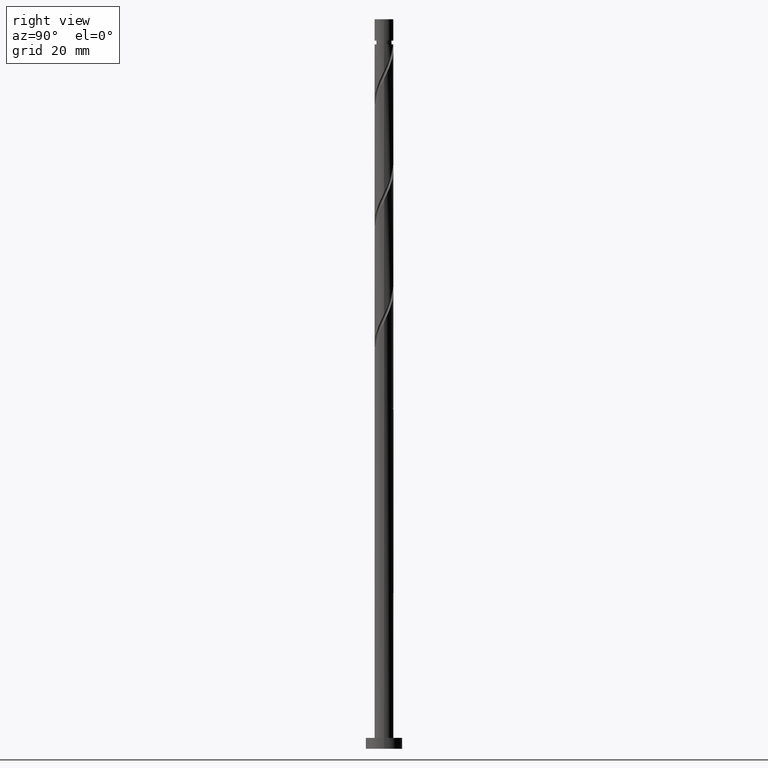
[diagram: clean part render]
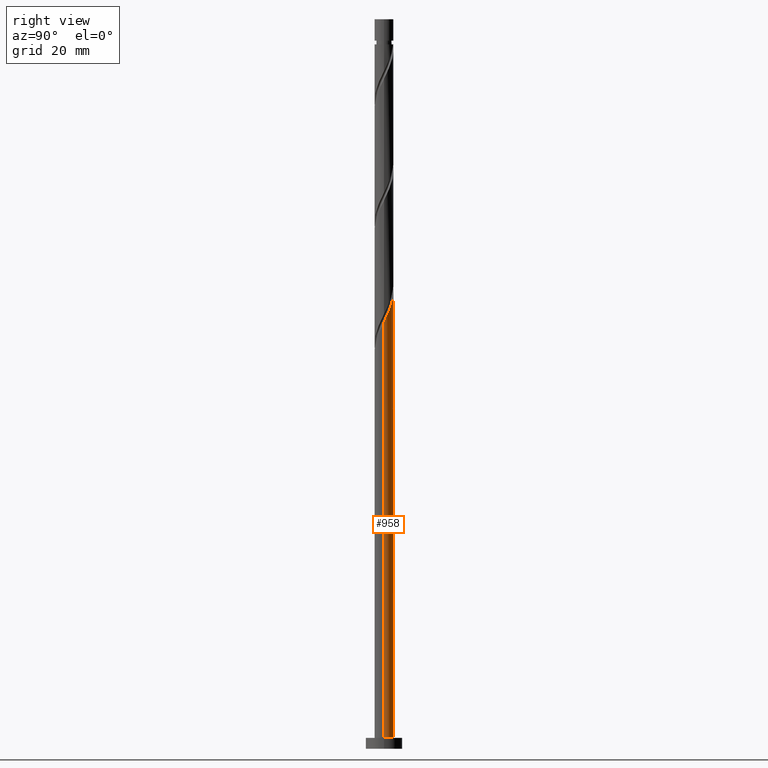
[diagram: same view with one face highlighted and labeled with its STEP entity id]
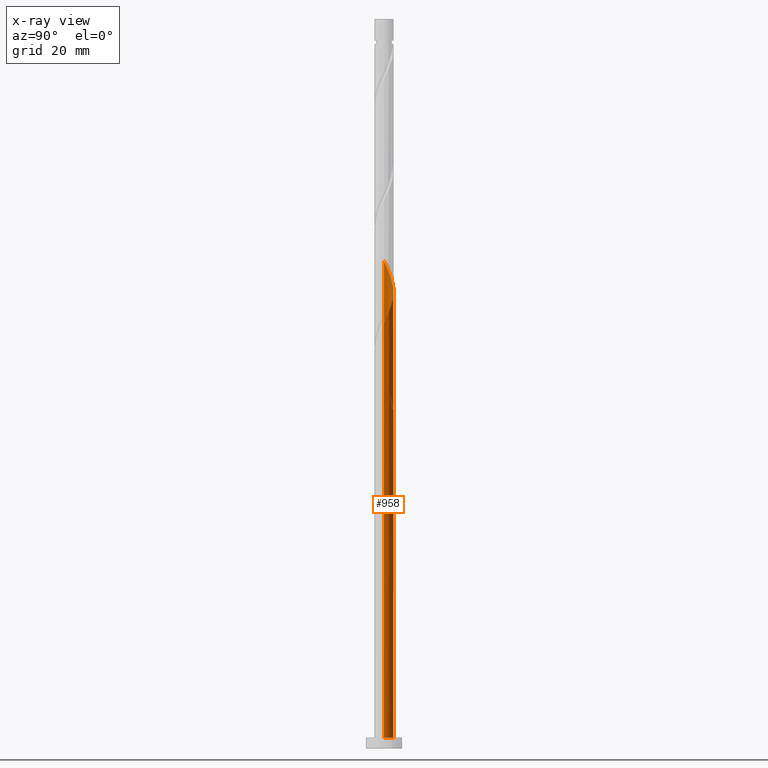
[diagram: x-ray of the same camera — body ghosted, the highlighted face saturated]
A machine part, right view. The second image highlights one B-rep face of the part: STEP entity #958.
The next image is the same camera in x-ray: the body ghosted, the highlighted face saturated — about 0% of this face is hidden behind the body in this view.
In plain terms, the highlighted cylindrical surface (edge-blend (fillet) strip) has radius 2.6 mm, axis along (-0, -0, -1).
Its self-contained STEP definition (entity closure, byte-faithful):
#3 = CARTESIAN_POINT ( 'NONE',  ( 1.947935995195031689, 1.722075886429967673, 120.8613134528319932 ) ) ;
#38 = CARTESIAN_POINT ( 'NONE',  ( -2.600000000000004086, -2.302882804317473155E-15, 133.6866356865107832 ) ) ;
#50 = CARTESIAN_POINT ( 'NONE',  ( -2.600000000000003642, 0.07992907430994611317, 133.5234719984826484 ) ) ;
#57 = CARTESIAN_POINT ( 'NONE',  ( -2.600000000000003642, -2.302882804317473550E-15, 100.3533023531774973 ) ) ;
#59 = CARTESIAN_POINT ( 'NONE',  ( -2.600000000000000089, 0.000000000000000000, 200.0000000000000000 ) ) ;
#67 = DIRECTION ( 'NONE',  ( 0.000000000000000000, -0.000000000000000000, -1.000000000000000000 ) ) ;
#74 = CYLINDRICAL_SURFACE ( 'NONE', #1132, 2.600000000000000089 ) ;
#83 = CARTESIAN_POINT ( 'NONE',  ( -2.600000000000004086, -2.302882804317473155E-15, 100.3533023531774973 ) ) ;
#87 =( BOUNDED_CURVE ( )  B_SPLINE_CURVE ( 2, ( #614, #1167, #1690, #489, #1035, #1293, #623, #1175, #1462, #932, #1075, #230, #83 ),
 .UNSPECIFIED., .F., .T. ) 
 B_SPLINE_CURVE_WITH_KNOTS ( ( 3, 2, 2, 2, 2, 2, 3 ),
 ( 0.000000000000000000, 0.01041666666666662966, 0.02083333333333337034, 0.03125000000000000000, 0.04166666666666662966, 0.05208333333333336340, 0.05453176698144631546 ),
 .UNSPECIFIED. ) 
 CURVE ( )  GEOMETRIC_REPRESENTATION_ITEM ( )  RATIONAL_B_SPLINE_CURVE ( ( 0.9090909090909320422, 0.9013135103398504100, 0.9090909090909320422, 0.9013135103398504100, 0.9090909090909320422, 0.9013135103398504100, 0.9090909090909320422, 0.9013135103398504100, 0.9090909090909320422, 0.9013135103398504100, 0.9090909090909320422, 0.9072628343904256543, 0.9062941362546521606 ) ) 
 REPRESENTATION_ITEM ( '' )  );
#100 = VECTOR ( 'NONE', #871, 1000.000000000000000 ) ;
#103 = FACE_OUTER_BOUND ( 'NONE', #1282, .T. ) ;
#110 = DIRECTION ( 'NONE',  ( -0.000000000000000000, -0.000000000000000000, -1.000000000000000000 ) ) ;
#150 = ORIENTED_EDGE ( 'NONE', *, *, #581, .T. ) ;
#178 = CARTESIAN_POINT ( 'NONE',  ( 2.600000000000000089, 3.184081677783118191E-16, 200.0000000000000000 ) ) ;
#198 = EDGE_CURVE ( 'NONE', #1468, #746, #1206, .T. ) ;
#230 = CARTESIAN_POINT ( 'NONE',  ( -2.600000000000003642, 0.07992907430995085938, 100.1901386651493482 ) ) ;
#318 = EDGE_CURVE ( 'NONE', #1741, #800, #856, .T. ) ;
#328 = DIRECTION ( 'NONE',  ( -0.000000000000000000, -0.000000000000000000, -1.000000000000000000 ) ) ;
#347 = LINE ( 'NONE', #1204, #365 ) ;
#365 = VECTOR ( 'NONE', #682, 1000.000000000000000 ) ;
#383 = CARTESIAN_POINT ( 'NONE',  ( -2.327267722236857406, 1.159234639335140704, 100.0279801194986646 ) ) ;
#386 = CARTESIAN_POINT ( 'NONE',  ( 0.000000000000000000, 0.000000000000000000, 200.0000000000000000 ) ) ;
#392 = CARTESIAN_POINT ( 'NONE',  ( -1.435855649197094852, 2.167560507729551667, 97.25020234172085054 ) ) ;
#396 = EDGE_CURVE ( 'NONE', #698, #432, #1459, .T. ) ;
#401 = CARTESIAN_POINT ( 'NONE',  ( -2.600000000000000533, 0.2613098319673978209, 101.9470092944083035 ) ) ;
#431 = CARTESIAN_POINT ( 'NONE',  ( -1.722075886429969005, 1.947935995195030801, 129.1946467861653502 ) ) ;
#432 = VERTEX_POINT ( 'NONE', #461 ) ;
#433 = CARTESIAN_POINT ( 'NONE',  ( -0.5173934672954432212, 2.548000000000003595, 93.08353567505420756 ) ) ;
#436 = CARTESIAN_POINT ( 'NONE',  ( -0.1819429034427561542, 2.616116142204851336, 125.7224245639431075 ) ) ;
#451 = DIRECTION ( 'NONE',  ( 1.000000000000000000, 0.000000000000000000, 0.000000000000000000 ) ) ;
#454 = CARTESIAN_POINT ( 'NONE',  ( -2.600000000000000533, 3.454324206476229849E-15, 102.4804356635976177 ) ) ;
#461 = CARTESIAN_POINT ( 'NONE',  ( -2.600000000000000089, 0.000000000000000000, 3.000000000000000000 ) ) ;
#485 = EDGE_CURVE ( 'NONE', #800, #1468, #1526, .T. ) ;
#489 = CARTESIAN_POINT ( 'NONE',  ( -1.465625247522153618, 2.174651586678563842, 95.16686900838755037 ) ) ;
#515 = CARTESIAN_POINT ( 'NONE',  ( -0.8259241135700324810, 2.465329462490471801, 95.86131345283199323 ) ) ;
#518 = ORIENTED_EDGE ( 'NONE', *, *, #763, .T. ) ;
#555 = CARTESIAN_POINT ( 'NONE',  ( 0.5013573324573725731, 2.574064434859625550, 124.3335356750541791 ) ) ;
#563 = CARTESIAN_POINT ( 'NONE',  ( 0.1597072145073082372, 2.595090288532238887, 125.0279801194986504 ) ) ;
#581 = EDGE_CURVE ( 'NONE', #1490, #746, #886, .T. ) ;
#585 = CARTESIAN_POINT ( 'NONE',  ( -2.574064434859625994, 0.5013573324573711298, 132.6668690083875504 ) ) ;
#594 = CARTESIAN_POINT ( 'NONE',  ( 0.000000000000000000, 0.000000000000000000, 3.000000000000000000 ) ) ;
#614 = CARTESIAN_POINT ( 'NONE',  ( -0.5173934672954432212, 2.548000000000003595, 93.08353567505420756 ) ) ;
#618 = CARTESIAN_POINT ( 'NONE',  ( 2.600000000000003642, 6.504896232974681806E-16, 117.0199690198441260 ) ) ;
#623 = CARTESIAN_POINT ( 'NONE',  ( -2.167560507729554331, 1.435855649197097073, 97.25020234172086475 ) ) ;
#667 = CARTESIAN_POINT ( 'NONE',  ( -0.1597072145073054894, 2.595090288532234890, 94.47242456394307908 ) ) ;
#677 = CARTESIAN_POINT ( 'NONE',  ( 2.327267722236860514, 1.159234639335140704, 119.4724245639431075 ) ) ;
#682 = DIRECTION ( 'NONE',  ( -0.000000000000000000, -0.000000000000000000, -1.000000000000000000 ) ) ;
#696 = CARTESIAN_POINT ( 'NONE',  ( -0.8528440311481289005, 2.479883857795156299, 127.1113134528319932 ) ) ;
#698 = VERTEX_POINT ( 'NONE', #1318 ) ;
#725 = CARTESIAN_POINT ( 'NONE',  ( -2.465329462490474022, 0.8259241135700345904, 131.9724245639431217 ) ) ;
#746 = VERTEX_POINT ( 'NONE', #1005 ) ;
#763 = EDGE_CURVE ( 'NONE', #1741, #698, #1402, .T. ) ;
#800 = VERTEX_POINT ( 'NONE', #1139 ) ;
#817 = CARTESIAN_POINT ( 'NONE',  ( 0.1819429034427590131, 2.616116142204848227, 93.77798011949865042 ) ) ;
#818 = ORIENTED_EDGE ( 'NONE', *, *, #396, .T. ) ;
#855 = CARTESIAN_POINT ( 'NONE',  ( -2.167560507729554331, 1.435855649197097073, 130.5835356750542360 ) ) ;
#856 =( BOUNDED_CURVE ( )  B_SPLINE_CURVE ( 2, ( #1232, #1222, #1126, #1474, #677, #1501, #3, #1748, #954, #1497, #1118, #555, #563, #436, #1363, #696, #1110, #1628, #431, #1238, #855, #1287, #725, #585, #1394, #50, #38 ),
 .UNSPECIFIED., .F., .T. ) 
 B_SPLINE_CURVE_WITH_KNOTS ( ( 3, 2, 2, 2, 2, 2, 2, 2, 2, 2, 2, 2, 2, 3 ),
 ( 0.1795317669814464612, 0.1875000000000000000, 0.1979166666666666297, 0.2083333333333333703, 0.2187500000000000000, 0.2291666666666666297, 0.2395833333333333703, 0.2500000000000000000, 0.2604166666666666297, 0.2708333333333333703, 0.2812500000000000000, 0.2916666666666666297, 0.3020833333333333703, 0.3045317669814464612 ),
 .UNSPECIFIED. ) 
 CURVE ( )  GEOMETRIC_REPRESENTATION_ITEM ( )  RATIONAL_B_SPLINE_CURVE ( ( 0.9062941362546521606, 0.9031415850403566870, 0.9090909090909320422, 0.9013135103398504100, 0.9090909090909320422, 0.9013135103398504100, 0.9090909090909320422, 0.9013135103398504100, 0.9090909090909320422, 0.9013135103398504100, 0.9090909090909320422, 0.9013135103398504100, 0.9090909090909320422, 0.9013135103398504100, 0.9090909090909320422, 0.9013135103398504100, 0.9090909090909320422, 0.9013135103398504100, 0.9090909090909320422, 0.9013135103398504100, 0.9090909090909320422, 0.9013135103398504100, 0.9090909090909320422, 0.9013135103398504100, 0.9090909090909320422, 0.9072628343904256543, 0.9062941362546521606 ) ) 
 REPRESENTATION_ITEM ( '' )  );
#871 = DIRECTION ( 'NONE',  ( -0.000000000000000000, -0.000000000000000000, -1.000000000000000000 ) ) ;
#886 = CIRCLE ( 'NONE', #1566, 2.600000000000000089 ) ;
#904 = EDGE_CURVE ( 'NONE', #1490, #1288, #87, .T. ) ;
#932 = CARTESIAN_POINT ( 'NONE',  ( -2.574064434859625994, 0.5013573324573711298, 99.33353567505422177 ) ) ;
#935 = CARTESIAN_POINT ( 'NONE',  ( -2.174651586678561177, 1.465625247522152286, 99.33353567505420756 ) ) ;
#946 = CARTESIAN_POINT ( 'NONE',  ( -1.150490894682695275, 2.356594490121320273, 96.55575789727642189 ) ) ;
#954 = CARTESIAN_POINT ( 'NONE',  ( 1.435855649197097295, 2.167560507729553887, 122.2502023417209074 ) ) ;
#955 = ORIENTED_EDGE ( 'NONE', *, *, #318, .F. ) ;
#958 = ADVANCED_FACE ( 'NONE', ( #103 ), #74, .T. ) ;
#1005 = CARTESIAN_POINT ( 'NONE',  ( 0.5173934672954442204, 2.547999999999999599, 93.08353567505420756 ) ) ;
#1035 = CARTESIAN_POINT ( 'NONE',  ( -1.722075886429969005, 1.947935995195030801, 95.86131345283199323 ) ) ;
#1073 = ORIENTED_EDGE ( 'NONE', *, *, #485, .F. ) ;
#1075 = CARTESIAN_POINT ( 'NONE',  ( -2.595090288532238887, 0.1597072145073066274, 100.0279801194986788 ) ) ;
#1079 = CARTESIAN_POINT ( 'NONE',  ( -1.721220403711494207, 1.978526525337782394, 97.94464678616527920 ) ) ;
#1095 = DIRECTION ( 'NONE',  ( -1.000000000000000000, 0.000000000000000000, 0.000000000000000000 ) ) ;
#1110 = CARTESIAN_POINT ( 'NONE',  ( -1.159234639335141370, 2.327267722236859626, 127.8057578972764361 ) ) ;
#1118 = CARTESIAN_POINT ( 'NONE',  ( 0.8259241135700351455, 2.465329462490473578, 123.6390912306097931 ) ) ;
#1126 = CARTESIAN_POINT ( 'NONE',  ( 2.548000000000004039, 0.5173934672954436653, 118.0835356750542076 ) ) ;
#1132 = AXIS2_PLACEMENT_3D ( 'NONE', #386, #110, #1095 ) ;
#1139 = CARTESIAN_POINT ( 'NONE',  ( -2.600000000000003642, -2.302882804317473550E-15, 133.6866356865107832 ) ) ;
#1159 = DIRECTION ( 'NONE',  ( -1.000000000000000000, 0.000000000000000000, 0.000000000000000000 ) ) ;
#1167 = CARTESIAN_POINT ( 'NONE',  ( -0.8528440311481289005, 2.479883857795156299, 93.77798011949865042 ) ) ;
#1175 = CARTESIAN_POINT ( 'NONE',  ( -2.356594490121323382, 1.150490894682697274, 97.94464678616530762 ) ) ;
#1188 = CARTESIAN_POINT ( 'NONE',  ( -2.600000000000000533, 3.454324206476229849E-15, 102.4804356635976177 ) ) ;
#1204 = CARTESIAN_POINT ( 'NONE',  ( -2.600000000000000089, 0.000000000000000000, 200.0000000000000000 ) ) ;
#1206 =( BOUNDED_CURVE ( )  B_SPLINE_CURVE ( 2, ( #1188, #401, #1585, #1709, #383, #935, #1724, #1079, #392, #946, #515, #1466, #667, #817, #1348 ),
 .UNSPECIFIED., .F., .T. ) 
 B_SPLINE_CURVE_WITH_KNOTS ( ( 3, 2, 2, 2, 2, 2, 2, 3 ),
 ( 0.9295317669814463502, 0.9375000000000000000, 0.9479166666666666297, 0.9583333333333333703, 0.9687500000000000000, 0.9791666666666666297, 0.9895833333333333703, 1.000000000000000000 ),
 .UNSPECIFIED. ) 
 CURVE ( )  GEOMETRIC_REPRESENTATION_ITEM ( )  RATIONAL_B_SPLINE_CURVE ( ( 0.9062941362546470536, 0.9031415850403514689, 0.9090909090909268242, 0.9013135103398453030, 0.9090909090909268242, 0.9013135103398453030, 0.9090909090909268242, 0.9013135103398453030, 0.9090909090909268242, 0.9013135103398453030, 0.9090909090909268242, 0.9013135103398453030, 0.9090909090909268242, 0.9013135103398453030, 0.9090909090909268242 ) ) 
 REPRESENTATION_ITEM ( '' )  );
#1222 = CARTESIAN_POINT ( 'NONE',  ( 2.600000000000002753, 0.2613098319673989867, 117.5533953890334118 ) ) ;
#1232 = CARTESIAN_POINT ( 'NONE',  ( 2.600000000000004086, 6.504896232974682792E-16, 117.0199690198441260 ) ) ;
#1238 = CARTESIAN_POINT ( 'NONE',  ( -1.978526525337784614, 1.721220403711496871, 129.8890912306097789 ) ) ;
#1281 = DIRECTION ( 'NONE',  ( 0.000000000000000000, 0.000000000000000000, 1.000000000000000000 ) ) ;
#1282 = EDGE_LOOP ( 'NONE', ( #955, #518, #818, #1629, #1595, #150, #1694, #1073 ) ) ;
#1287 = CARTESIAN_POINT ( 'NONE',  ( -2.356594490121323382, 1.150490894682697274, 131.2779801194986362 ) ) ;
#1288 = VERTEX_POINT ( 'NONE', #57 ) ;
#1293 = CARTESIAN_POINT ( 'NONE',  ( -1.978526525337784614, 1.721220403711496871, 96.55575789727642189 ) ) ;
#1318 = CARTESIAN_POINT ( 'NONE',  ( 2.600000000000000089, 3.184081677783118191E-16, 3.000000000000000000 ) ) ;
#1348 = CARTESIAN_POINT ( 'NONE',  ( 0.5173934672954442204, 2.547999999999999599, 93.08353567505422177 ) ) ;
#1349 = EDGE_CURVE ( 'NONE', #1288, #432, #347, .T. ) ;
#1363 = CARTESIAN_POINT ( 'NONE',  ( -0.5173934672954433323, 2.548000000000004039, 126.4168690083875646 ) ) ;
#1394 = CARTESIAN_POINT ( 'NONE',  ( -2.595090288532238887, 0.1597072145073066274, 133.3613134528319790 ) ) ;
#1402 = LINE ( 'NONE', #178, #100 ) ;
#1459 = CIRCLE ( 'NONE', #1682, 2.600000000000000089 ) ;
#1462 = CARTESIAN_POINT ( 'NONE',  ( -2.465329462490474022, 0.8259241135700345904, 98.63909123060976469 ) ) ;
#1466 = CARTESIAN_POINT ( 'NONE',  ( -0.5013573324573700196, 2.574064434859621997, 95.16686900838752194 ) ) ;
#1468 = VERTEX_POINT ( 'NONE', #454 ) ;
#1474 = CARTESIAN_POINT ( 'NONE',  ( 2.479883857795156743, 0.8528440311481283453, 118.7779801194986504 ) ) ;
#1490 = VERTEX_POINT ( 'NONE', #433 ) ;
#1497 = CARTESIAN_POINT ( 'NONE',  ( 1.150490894682697718, 2.356594490121322938, 122.9446467861652934 ) ) ;
#1501 = CARTESIAN_POINT ( 'NONE',  ( 2.174651586678565174, 1.465625247522152730, 120.1668690083875504 ) ) ;
#1517 = CARTESIAN_POINT ( 'NONE',  ( 0.000000000000000000, 0.000000000000000000, 93.08353567505420756 ) ) ;
#1526 = LINE ( 'NONE', #59, #1651 ) ;
#1566 = AXIS2_PLACEMENT_3D ( 'NONE', #1517, #67, #1159 ) ;
#1585 = CARTESIAN_POINT ( 'NONE',  ( -2.547999999999999599, 0.5173934672954437763, 101.4168690083875646 ) ) ;
#1595 = ORIENTED_EDGE ( 'NONE', *, *, #904, .F. ) ;
#1628 = CARTESIAN_POINT ( 'NONE',  ( -1.465625247522153618, 2.174651586678563842, 128.5002023417208932 ) ) ;
#1629 = ORIENTED_EDGE ( 'NONE', *, *, #1349, .F. ) ;
#1651 = VECTOR ( 'NONE', #328, 1000.000000000000000 ) ;
#1682 = AXIS2_PLACEMENT_3D ( 'NONE', #594, #1281, #451 ) ;
#1690 = CARTESIAN_POINT ( 'NONE',  ( -1.159234639335141370, 2.327267722236859626, 94.47242456394307908 ) ) ;
#1694 = ORIENTED_EDGE ( 'NONE', *, *, #198, .F. ) ;
#1709 = CARTESIAN_POINT ( 'NONE',  ( -2.479883857795150970, 0.8528440311481283453, 100.7224245639430933 ) ) ;
#1724 = CARTESIAN_POINT ( 'NONE',  ( -1.947935995195027248, 1.722075886429967673, 98.63909123060979312 ) ) ;
#1741 = VERTEX_POINT ( 'NONE', #618 ) ;
#1748 = CARTESIAN_POINT ( 'NONE',  ( 1.721220403711498426, 1.978526525337783504, 121.5557578972764361 ) ) ;